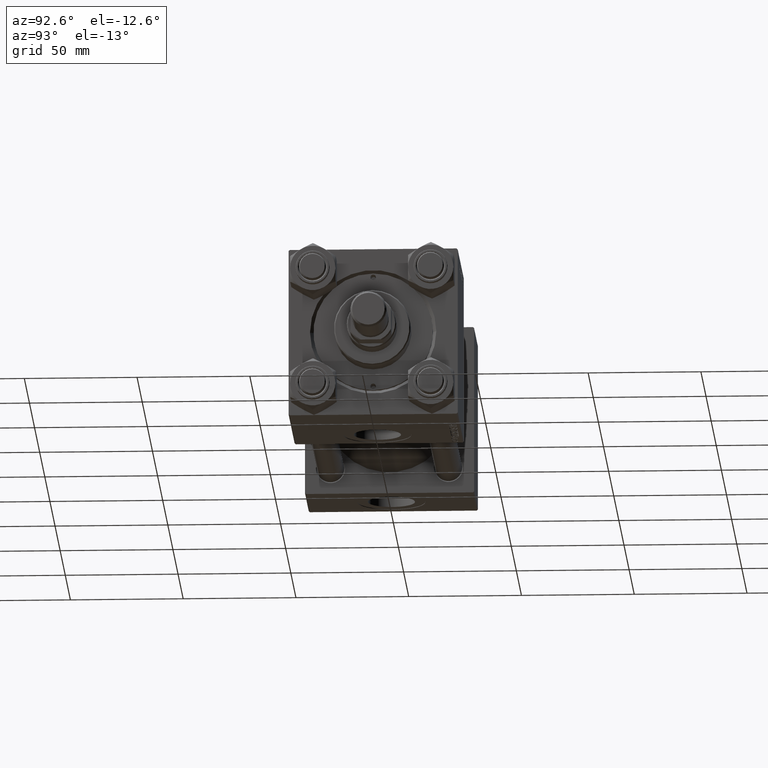
[diagram: clean part render]
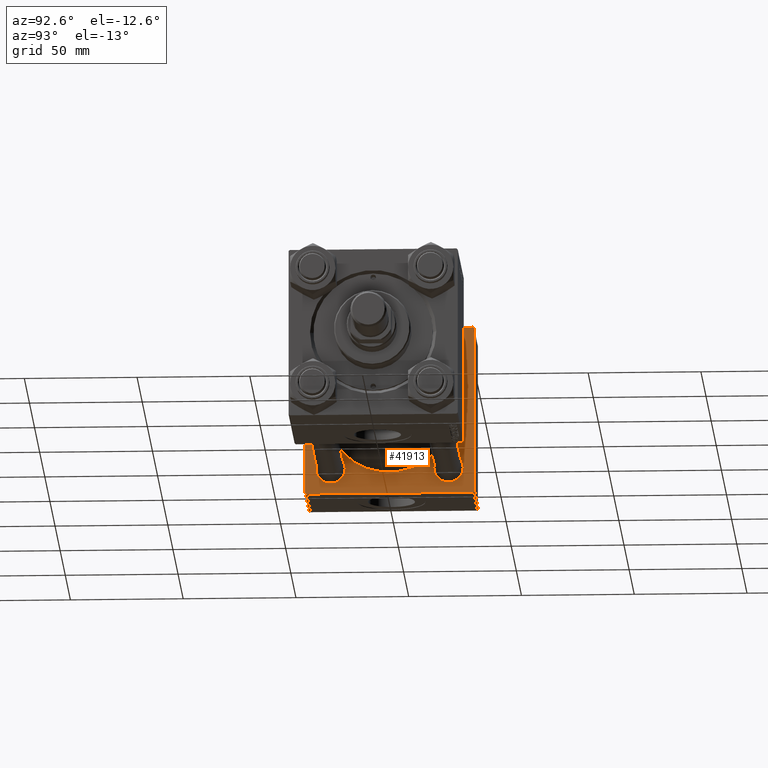
[diagram: same view with one face highlighted and labeled with its STEP entity id]
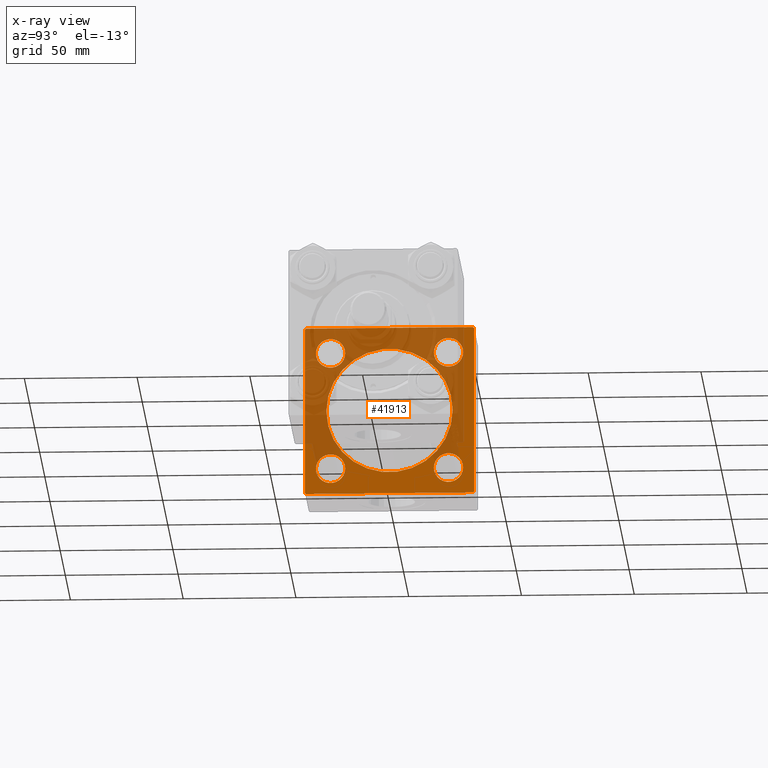
[diagram: x-ray of the same camera — body ghosted, the highlighted face saturated]
A machine part, auxiliary view. The second image highlights one B-rep face of the part: STEP entity #41913.
The next image is the same camera in x-ray: the body ghosted, the highlighted face saturated — about 58% of this face is hidden behind the body in this view.
In plain terms, the highlighted planar face has unit normal (-1, 0, 0).
Its self-contained STEP definition (entity closure, byte-faithful):
#99 = ORIENTED_EDGE ( 'NONE', *, *, #29276, .T. ) ;
#121 = CARTESIAN_POINT ( 'NONE',  ( 37.00000000000000000, 0.000000000000000000, 0.000000000000000000 ) ) ;
#531 = ORIENTED_EDGE ( 'NONE', *, *, #4225, .T. ) ;
#594 = VERTEX_POINT ( 'NONE', #47937 ) ;
#842 = VERTEX_POINT ( 'NONE', #7400 ) ;
#1012 = DIRECTION ( 'NONE',  ( 0.000000000000000000, 0.000000000000000000, 1.000000000000000000 ) ) ;
#1060 = EDGE_CURVE ( 'NONE', #842, #49666, #4132, .T. ) ;
#1476 = DIRECTION ( 'NONE',  ( -1.000000000000000000, 0.000000000000000000, -0.000000000000000000 ) ) ;
#2230 = EDGE_LOOP ( 'NONE', ( #22183, #18471 ) ) ;
#2704 = CARTESIAN_POINT ( 'NONE',  ( 37.00000000000000000, 37.49999999999999289, -36.99999999999998579 ) ) ;
#2865 = CARTESIAN_POINT ( 'NONE',  ( 37.00000000000000000, -26.14999999999999147, 26.15000000000000924 ) ) ;
#3271 = DIRECTION ( 'NONE',  ( 1.000000000000000000, -0.000000000000000000, 0.000000000000000000 ) ) ;
#3297 = LINE ( 'NONE', #26577, #47318 ) ;
#3854 = ORIENTED_EDGE ( 'NONE', *, *, #23191, .T. ) ;
#4132 = CIRCLE ( 'NONE', #39303, 6.499999999999953815 ) ;
#4225 = EDGE_CURVE ( 'NONE', #15692, #14310, #20603, .T. ) ;
#4316 = CARTESIAN_POINT ( 'NONE',  ( 37.00000000000000000, -26.14999999999999147, -26.15000000000000924 ) ) ;
#4325 = VECTOR ( 'NONE', #43501, 1000.000000000000114 ) ;
#5062 = CARTESIAN_POINT ( 'NONE',  ( 37.00000000000000000, 26.14999999999999858, 26.15000000000000213 ) ) ;
#5092 = DIRECTION ( 'NONE',  ( 0.000000000000000000, 0.000000000000000000, 1.000000000000000000 ) ) ;
#5272 = CARTESIAN_POINT ( 'NONE',  ( 37.00000000000000000, -26.14999999999999147, -19.65000000000004832 ) ) ;
#5332 = CARTESIAN_POINT ( 'NONE',  ( 37.00000000000000000, -37.00000000000002132, -37.50000000000000711 ) ) ;
#6497 = AXIS2_PLACEMENT_3D ( 'NONE', #32479, #3271, #18625 ) ;
#6502 = ORIENTED_EDGE ( 'NONE', *, *, #1060, .T. ) ;
#6690 = EDGE_CURVE ( 'NONE', #14310, #15692, #12487, .T. ) ;
#7342 = CARTESIAN_POINT ( 'NONE',  ( 37.00000000000000000, 37.49999999999999289, -37.50000000000000000 ) ) ;
#7400 = CARTESIAN_POINT ( 'NONE',  ( 37.00000000000000000, 26.14999999999999858, 19.65000000000005187 ) ) ;
#7802 = FACE_BOUND ( 'NONE', #16531, .T. ) ;
#8046 = PLANE ( 'NONE',  #17066 ) ;
#8552 = FACE_BOUND ( 'NONE', #2230, .T. ) ;
#8762 = VERTEX_POINT ( 'NONE', #39030 ) ;
#9626 = CARTESIAN_POINT ( 'NONE',  ( 37.00000000000000000, 26.14999999999999858, -26.15000000000000213 ) ) ;
#10946 = DIRECTION ( 'NONE',  ( 0.000000000000000000, 0.7071067811865524577, -0.7071067811865426878 ) ) ;
#11142 = AXIS2_PLACEMENT_3D ( 'NONE', #13526, #32493, #1012 ) ;
#11192 = DIRECTION ( 'NONE',  ( 0.000000000000000000, -1.000000000000000000, -9.251858538542972814E-17 ) ) ;
#11886 = CARTESIAN_POINT ( 'NONE',  ( 37.00000000000000711, 8.269258236473784371E-16, -28.00000000000000000 ) ) ;
#12225 = CARTESIAN_POINT ( 'NONE',  ( 37.00000000000000000, 36.99999999999999289, 37.50000000000000000 ) ) ;
#12425 = EDGE_CURVE ( 'NONE', #49666, #842, #40148, .T. ) ;
#12487 = CIRCLE ( 'NONE', #19045, 6.499999999999960920 ) ;
#12639 = DIRECTION ( 'NONE',  ( -1.000000000000000000, 0.000000000000000000, -0.000000000000000000 ) ) ;
#13216 = DIRECTION ( 'NONE',  ( 0.000000000000000000, 0.000000000000000000, 1.000000000000000000 ) ) ;
#13526 = CARTESIAN_POINT ( 'NONE',  ( 37.00000000000000000, 26.14999999999999858, -26.15000000000000213 ) ) ;
#14012 = DIRECTION ( 'NONE',  ( 0.000000000000000000, 0.000000000000000000, 1.000000000000000000 ) ) ;
#14310 = VERTEX_POINT ( 'NONE', #28897 ) ;
#14496 = VERTEX_POINT ( 'NONE', #27749 ) ;
#14640 = EDGE_CURVE ( 'NONE', #34682, #37349, #22609, .T. ) ;
#14899 = CARTESIAN_POINT ( 'NONE',  ( 37.00000000000000000, -37.50000000000000711, 36.99999999999999289 ) ) ;
#14951 = VERTEX_POINT ( 'NONE', #34834 ) ;
#15059 = VERTEX_POINT ( 'NONE', #34333 ) ;
#15313 = DIRECTION ( 'NONE',  ( -1.000000000000000000, 0.000000000000000000, -0.000000000000000000 ) ) ;
#15603 = AXIS2_PLACEMENT_3D ( 'NONE', #5062, #44261, #32201 ) ;
#15692 = VERTEX_POINT ( 'NONE', #5272 ) ;
#15732 = FACE_OUTER_BOUND ( 'NONE', #32513, .T. ) ;
#15790 = LINE ( 'NONE', #7342, #44987 ) ;
#15875 = ORIENTED_EDGE ( 'NONE', *, *, #43465, .F. ) ;
#15899 = VERTEX_POINT ( 'NONE', #42382 ) ;
#16531 = EDGE_LOOP ( 'NONE', ( #40264, #15875 ) ) ;
#16835 = DIRECTION ( 'NONE',  ( 0.000000000000000000, 0.000000000000000000, 1.000000000000000000 ) ) ;
#17066 = AXIS2_PLACEMENT_3D ( 'NONE', #121, #12639, #28246 ) ;
#18468 = DIRECTION ( 'NONE',  ( 0.000000000000000000, 0.000000000000000000, 1.000000000000000000 ) ) ;
#18471 = ORIENTED_EDGE ( 'NONE', *, *, #41569, .T. ) ;
#18625 = DIRECTION ( 'NONE',  ( 0.000000000000000000, 0.000000000000000000, 1.000000000000000000 ) ) ;
#19045 = AXIS2_PLACEMENT_3D ( 'NONE', #27581, #15313, #34788 ) ;
#19420 = VERTEX_POINT ( 'NONE', #23827 ) ;
#19592 = CIRCLE ( 'NONE', #22835, 28.00000000000000000 ) ;
#20603 = CIRCLE ( 'NONE', #31201, 6.499999999999960920 ) ;
#20949 = CARTESIAN_POINT ( 'NONE',  ( 37.00000000000000711, -2.602085213965210642E-15, 0.000000000000000000 ) ) ;
#21001 = CARTESIAN_POINT ( 'NONE',  ( 37.00000000000000000, 26.14999999999999858, -32.64999999999994884 ) ) ;
#21333 = EDGE_CURVE ( 'NONE', #594, #14496, #39897, .T. ) ;
#21556 = CIRCLE ( 'NONE', #25647, 6.499999999999968026 ) ;
#21795 = VERTEX_POINT ( 'NONE', #21001 ) ;
#21822 = DIRECTION ( 'NONE',  ( -0.000000000000000000, -0.7071067811865474617, -0.7071067811865474617 ) ) ;
#21997 = CARTESIAN_POINT ( 'NONE',  ( 37.00000000000000000, 26.14999999999999858, 32.64999999999995595 ) ) ;
#22090 = VERTEX_POINT ( 'NONE', #5332 ) ;
#22183 = ORIENTED_EDGE ( 'NONE', *, *, #24566, .T. ) ;
#22609 = LINE ( 'NONE', #35148, #28753 ) ;
#22670 = CARTESIAN_POINT ( 'NONE',  ( 37.00000000000000000, -37.00000000000000711, 37.49999999999999289 ) ) ;
#22835 = AXIS2_PLACEMENT_3D ( 'NONE', #20949, #24799, #5092 ) ;
#23191 = EDGE_CURVE ( 'NONE', #37349, #22090, #30400, .T. ) ;
#23662 = CARTESIAN_POINT ( 'NONE',  ( 37.00000000000000000, -37.50000000000000000, -37.00000000000003553 ) ) ;
#23827 = CARTESIAN_POINT ( 'NONE',  ( 37.00000000000000000, 36.99999999999997868, -37.50000000000000000 ) ) ;
#24373 = VECTOR ( 'NONE', #45738, 1000.000000000000114 ) ;
#24566 = EDGE_CURVE ( 'NONE', #33807, #15899, #21556, .T. ) ;
#24757 = DIRECTION ( 'NONE',  ( -1.000000000000000000, 0.000000000000000000, -0.000000000000000000 ) ) ;
#24799 = DIRECTION ( 'NONE',  ( 1.000000000000000000, -0.000000000000000000, 0.000000000000000000 ) ) ;
#25443 = ORIENTED_EDGE ( 'NONE', *, *, #40276, .F. ) ;
#25647 = AXIS2_PLACEMENT_3D ( 'NONE', #2865, #45896, #18468 ) ;
#25749 = EDGE_CURVE ( 'NONE', #14496, #47926, #49180, .T. ) ;
#26351 = CARTESIAN_POINT ( 'NONE',  ( 37.00000000000000000, 37.49999999999999289, 37.50000000000000000 ) ) ;
#26577 = CARTESIAN_POINT ( 'NONE',  ( 37.00000000000000000, 37.49999999999999289, 37.50000000000000000 ) ) ;
#27225 = ORIENTED_EDGE ( 'NONE', *, *, #25749, .T. ) ;
#27252 = FACE_BOUND ( 'NONE', #46221, .T. ) ;
#27324 = VECTOR ( 'NONE', #34294, 1000.000000000000000 ) ;
#27357 = ORIENTED_EDGE ( 'NONE', *, *, #14640, .T. ) ;
#27581 = CARTESIAN_POINT ( 'NONE',  ( 37.00000000000000000, -26.14999999999999147, -26.15000000000000924 ) ) ;
#27749 = CARTESIAN_POINT ( 'NONE',  ( 37.00000000000000000, 36.99999999999999289, 37.50000000000000000 ) ) ;
#28246 = DIRECTION ( 'NONE',  ( -0.000000000000000000, 0.000000000000000000, 1.000000000000000000 ) ) ;
#28267 = ORIENTED_EDGE ( 'NONE', *, *, #41256, .T. ) ;
#28753 = VECTOR ( 'NONE', #50552, 1000.000000000000000 ) ;
#28897 = CARTESIAN_POINT ( 'NONE',  ( 37.00000000000000000, -26.14999999999999147, -32.64999999999997016 ) ) ;
#29276 = EDGE_CURVE ( 'NONE', #21795, #15059, #34033, .T. ) ;
#29495 = LINE ( 'NONE', #14899, #30149 ) ;
#30072 = LINE ( 'NONE', #2704, #24373 ) ;
#30149 = VECTOR ( 'NONE', #21822, 1000.000000000000114 ) ;
#30400 = LINE ( 'NONE', #46073, #48577 ) ;
#31201 = AXIS2_PLACEMENT_3D ( 'NONE', #4316, #1476, #16835 ) ;
#32201 = DIRECTION ( 'NONE',  ( 0.000000000000000000, 0.000000000000000000, 1.000000000000000000 ) ) ;
#32479 = CARTESIAN_POINT ( 'NONE',  ( 37.00000000000000711, -2.602085213965210642E-15, 0.000000000000000000 ) ) ;
#32493 = DIRECTION ( 'NONE',  ( -1.000000000000000000, 0.000000000000000000, -0.000000000000000000 ) ) ;
#32513 = EDGE_LOOP ( 'NONE', ( #37228, #49450, #25443, #36553, #27225, #28267, #27357, #3854 ) ) ;
#32622 = CARTESIAN_POINT ( 'NONE',  ( 37.00000000000000000, -26.14999999999999147, 19.65000000000004121 ) ) ;
#33807 = VERTEX_POINT ( 'NONE', #32622 ) ;
#34033 = CIRCLE ( 'NONE', #11142, 6.499999999999946709 ) ;
#34294 = DIRECTION ( 'NONE',  ( 0.000000000000000000, -1.000000000000000000, -9.251858538542971581E-17 ) ) ;
#34333 = CARTESIAN_POINT ( 'NONE',  ( 37.00000000000000000, 26.14999999999999858, -19.65000000000005542 ) ) ;
#34682 = VERTEX_POINT ( 'NONE', #43937 ) ;
#34788 = DIRECTION ( 'NONE',  ( 0.000000000000000000, 0.000000000000000000, 1.000000000000000000 ) ) ;
#34834 = CARTESIAN_POINT ( 'NONE',  ( 37.00000000000000711, -2.602085213965210642E-15, 28.00000000000000000 ) ) ;
#35148 = CARTESIAN_POINT ( 'NONE',  ( 37.00000000000000000, -37.50000000000000711, 37.49999999999999289 ) ) ;
#35674 = ORIENTED_EDGE ( 'NONE', *, *, #12425, .T. ) ;
#35925 = CIRCLE ( 'NONE', #6497, 28.00000000000000000 ) ;
#36553 = ORIENTED_EDGE ( 'NONE', *, *, #21333, .T. ) ;
#36695 = AXIS2_PLACEMENT_3D ( 'NONE', #49963, #44850, #41498 ) ;
#37228 = ORIENTED_EDGE ( 'NONE', *, *, #43567, .F. ) ;
#37349 = VERTEX_POINT ( 'NONE', #23662 ) ;
#37409 = VERTEX_POINT ( 'NONE', #11886 ) ;
#37498 = CIRCLE ( 'NONE', #36695, 6.499999999999968026 ) ;
#37851 = DIRECTION ( 'NONE',  ( -1.000000000000000000, 0.000000000000000000, -0.000000000000000000 ) ) ;
#39030 = CARTESIAN_POINT ( 'NONE',  ( 37.00000000000000000, 37.49999999999999289, -36.99999999999998579 ) ) ;
#39303 = AXIS2_PLACEMENT_3D ( 'NONE', #41693, #37851, #14012 ) ;
#39897 = LINE ( 'NONE', #12225, #4325 ) ;
#40148 = CIRCLE ( 'NONE', #15603, 6.499999999999953815 ) ;
#40264 = ORIENTED_EDGE ( 'NONE', *, *, #43398, .F. ) ;
#40276 = EDGE_CURVE ( 'NONE', #594, #8762, #3297, .T. ) ;
#40971 = EDGE_CURVE ( 'NONE', #19420, #8762, #30072, .T. ) ;
#41256 = EDGE_CURVE ( 'NONE', #47926, #34682, #29495, .T. ) ;
#41498 = DIRECTION ( 'NONE',  ( 0.000000000000000000, 0.000000000000000000, 1.000000000000000000 ) ) ;
#41569 = EDGE_CURVE ( 'NONE', #15899, #33807, #37498, .T. ) ;
#41693 = CARTESIAN_POINT ( 'NONE',  ( 37.00000000000000000, 26.14999999999999858, 26.15000000000000213 ) ) ;
#41913 = ADVANCED_FACE ( 'NONE', ( #7802, #27252, #8552, #43159, #50599, #15732 ), #8046, .F. ) ;
#41981 = DIRECTION ( 'NONE',  ( 0.000000000000000000, 0.000000000000000000, -1.000000000000000000 ) ) ;
#42382 = CARTESIAN_POINT ( 'NONE',  ( 37.00000000000000000, -26.14999999999999147, 32.64999999999997726 ) ) ;
#42810 = EDGE_LOOP ( 'NONE', ( #99, #48353 ) ) ;
#43159 = FACE_BOUND ( 'NONE', #46732, .T. ) ;
#43398 = EDGE_CURVE ( 'NONE', #14951, #37409, #19592, .T. ) ;
#43465 = EDGE_CURVE ( 'NONE', #37409, #14951, #35925, .T. ) ;
#43501 = DIRECTION ( 'NONE',  ( 0.000000000000000000, -0.7071067811865474617, 0.7071067811865474617 ) ) ;
#43567 = EDGE_CURVE ( 'NONE', #19420, #22090, #15790, .T. ) ;
#43937 = CARTESIAN_POINT ( 'NONE',  ( 37.00000000000000000, -37.50000000000000711, 36.99999999999999289 ) ) ;
#44261 = DIRECTION ( 'NONE',  ( -1.000000000000000000, 0.000000000000000000, -0.000000000000000000 ) ) ;
#44850 = DIRECTION ( 'NONE',  ( -1.000000000000000000, 0.000000000000000000, -0.000000000000000000 ) ) ;
#44987 = VECTOR ( 'NONE', #11192, 1000.000000000000000 ) ;
#45738 = DIRECTION ( 'NONE',  ( -0.000000000000000000, 0.7071067811865474617, 0.7071067811865474617 ) ) ;
#45896 = DIRECTION ( 'NONE',  ( -1.000000000000000000, 0.000000000000000000, -0.000000000000000000 ) ) ;
#46073 = CARTESIAN_POINT ( 'NONE',  ( 37.00000000000000000, -37.00000000000002132, -37.50000000000000711 ) ) ;
#46221 = EDGE_LOOP ( 'NONE', ( #6502, #35674 ) ) ;
#46707 = CIRCLE ( 'NONE', #49153, 6.499999999999946709 ) ;
#46732 = EDGE_LOOP ( 'NONE', ( #50563, #531 ) ) ;
#47318 = VECTOR ( 'NONE', #41981, 1000.000000000000000 ) ;
#47771 = EDGE_CURVE ( 'NONE', #15059, #21795, #46707, .T. ) ;
#47926 = VERTEX_POINT ( 'NONE', #22670 ) ;
#47937 = CARTESIAN_POINT ( 'NONE',  ( 37.00000000000000000, 37.49999999999999289, 37.00000000000000000 ) ) ;
#48353 = ORIENTED_EDGE ( 'NONE', *, *, #47771, .T. ) ;
#48577 = VECTOR ( 'NONE', #10946, 1000.000000000000000 ) ;
#49153 = AXIS2_PLACEMENT_3D ( 'NONE', #9626, #24757, #13216 ) ;
#49180 = LINE ( 'NONE', #26351, #27324 ) ;
#49450 = ORIENTED_EDGE ( 'NONE', *, *, #40971, .T. ) ;
#49666 = VERTEX_POINT ( 'NONE', #21997 ) ;
#49963 = CARTESIAN_POINT ( 'NONE',  ( 37.00000000000000000, -26.14999999999999147, 26.15000000000000924 ) ) ;
#50552 = DIRECTION ( 'NONE',  ( 0.000000000000000000, 9.251858538542971581E-17, -1.000000000000000000 ) ) ;
#50563 = ORIENTED_EDGE ( 'NONE', *, *, #6690, .T. ) ;
#50599 = FACE_BOUND ( 'NONE', #42810, .T. ) ;